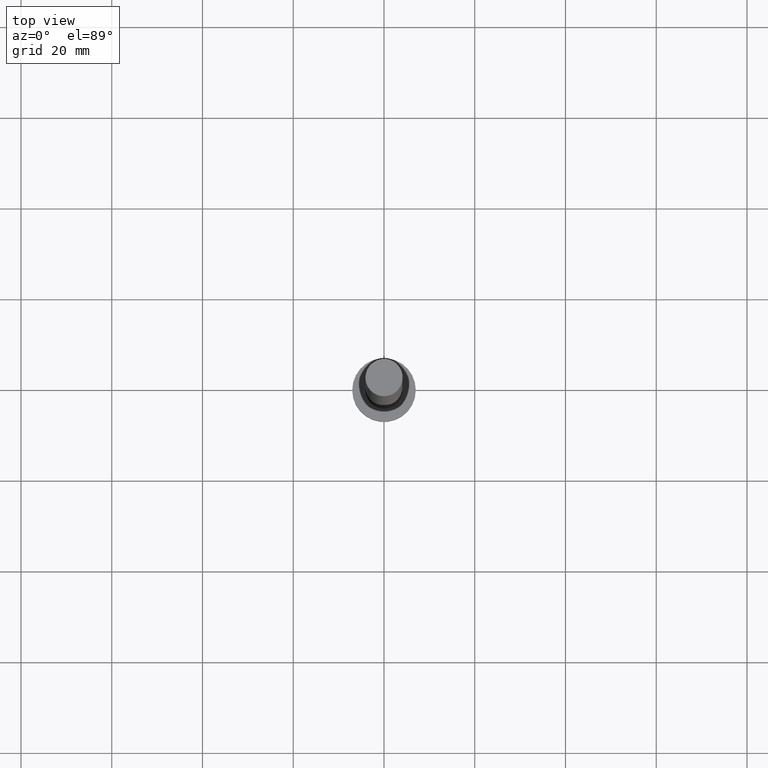
[diagram: clean part render]
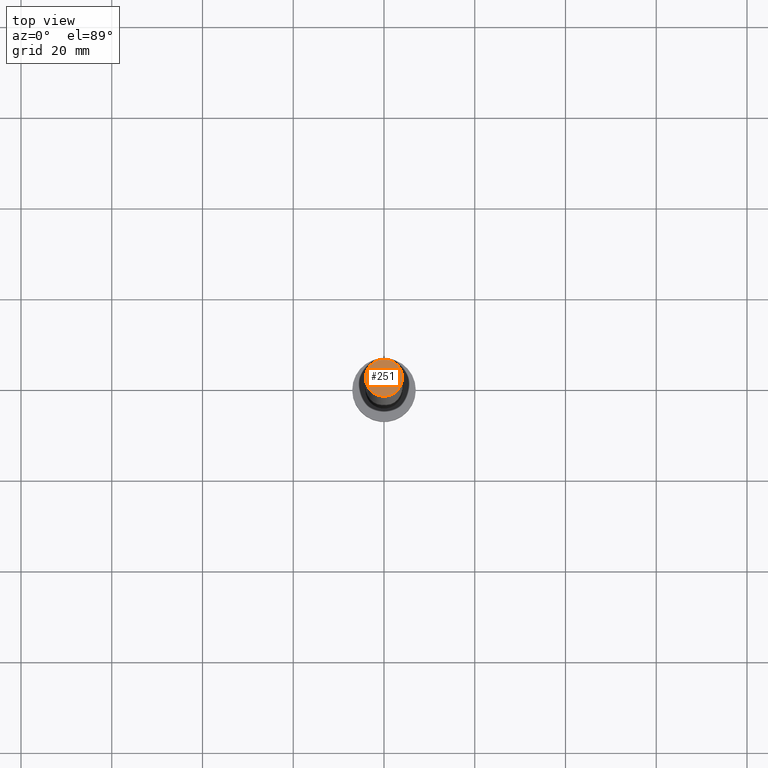
[diagram: same view with one face highlighted and labeled with its STEP entity id]
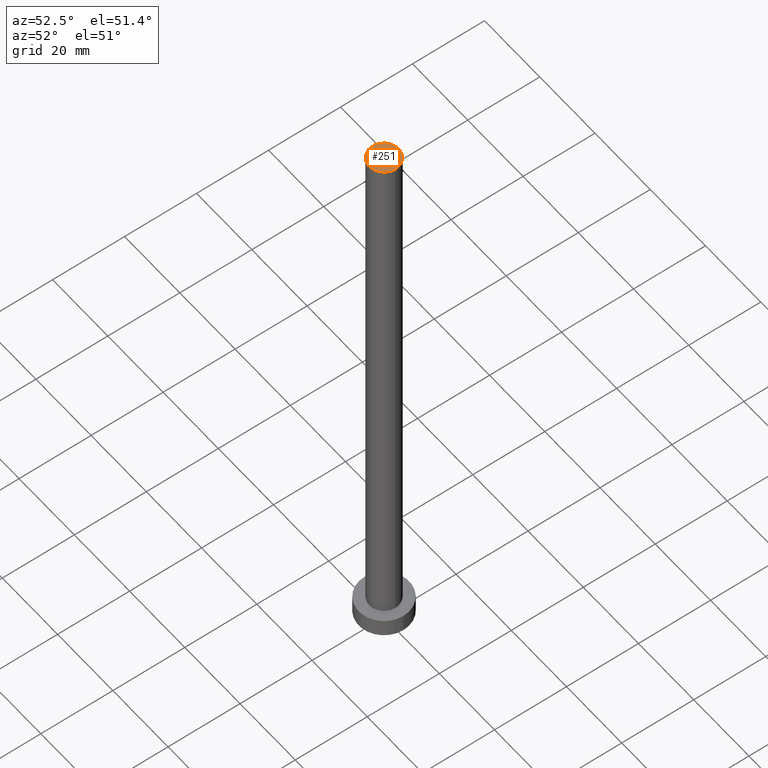
[diagram: same view with one face highlighted and labeled with its STEP entity id]
A machine part, top view. The second image highlights one B-rep face of the part: STEP entity #251.
A second angle (auxiliary view) of the same face is appended — the face is thin or edge-on in the first view.
In plain terms, the highlighted planar face has unit normal (0, 0, 1).
Its self-contained STEP definition (entity closure, byte-faithful):
#10 = DIRECTION ( 'NONE',  ( 1.000000000000000000, 0.000000000000000000, 0.000000000000000000 ) ) ;
#16 = CIRCLE ( 'NONE', #84, 4.099999999999999645 ) ;
#25 = CARTESIAN_POINT ( 'NONE',  ( 0.000000000000000000, 0.000000000000000000, 160.0000000000000000 ) ) ;
#28 = PLANE ( 'NONE',  #204 ) ;
#35 = DIRECTION ( 'NONE',  ( 0.000000000000000000, 0.000000000000000000, 1.000000000000000000 ) ) ;
#53 = CARTESIAN_POINT ( 'NONE',  ( 0.000000000000000000, 0.000000000000000000, 160.0000000000000000 ) ) ;
#69 = DIRECTION ( 'NONE',  ( 0.000000000000000000, 0.000000000000000000, 1.000000000000000000 ) ) ;
#77 = AXIS2_PLACEMENT_3D ( 'NONE', #235, #35, #10 ) ;
#84 = AXIS2_PLACEMENT_3D ( 'NONE', #53, #248, #226 ) ;
#100 = EDGE_LOOP ( 'NONE', ( #208, #125 ) ) ;
#125 = ORIENTED_EDGE ( 'NONE', *, *, #216, .T. ) ;
#134 = EDGE_CURVE ( 'NONE', #161, #141, #137, .T. ) ;
#136 = DIRECTION ( 'NONE',  ( 1.000000000000000000, 0.000000000000000000, -0.000000000000000000 ) ) ;
#137 = CIRCLE ( 'NONE', #77, 4.099999999999999645 ) ;
#141 = VERTEX_POINT ( 'NONE', #175 ) ;
#161 = VERTEX_POINT ( 'NONE', #229 ) ;
#175 = CARTESIAN_POINT ( 'NONE',  ( 4.099999999999999645, 5.021051876504147385E-16, 160.0000000000000000 ) ) ;
#183 = FACE_OUTER_BOUND ( 'NONE', #100, .T. ) ;
#204 = AXIS2_PLACEMENT_3D ( 'NONE', #25, #69, #136 ) ;
#208 = ORIENTED_EDGE ( 'NONE', *, *, #134, .T. ) ;
#216 = EDGE_CURVE ( 'NONE', #141, #161, #16, .T. ) ;
#226 = DIRECTION ( 'NONE',  ( 1.000000000000000000, 0.000000000000000000, 0.000000000000000000 ) ) ;
#229 = CARTESIAN_POINT ( 'NONE',  ( -4.099999999999999645, 0.000000000000000000, 160.0000000000000000 ) ) ;
#235 = CARTESIAN_POINT ( 'NONE',  ( 0.000000000000000000, 0.000000000000000000, 160.0000000000000000 ) ) ;
#248 = DIRECTION ( 'NONE',  ( 0.000000000000000000, 0.000000000000000000, 1.000000000000000000 ) ) ;
#251 = ADVANCED_FACE ( 'NONE', ( #183 ), #28, .T. ) ;